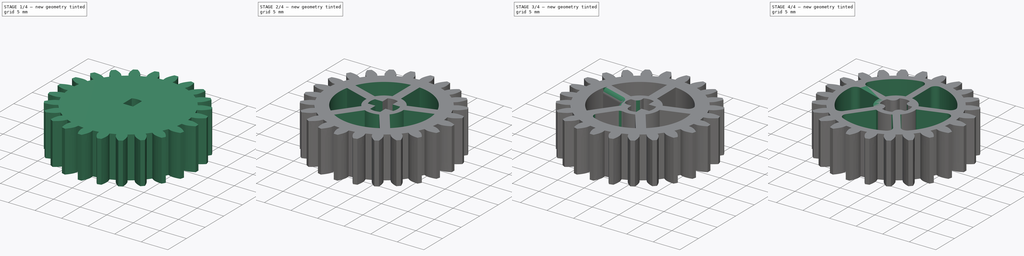
[diagram: build sequence overview — one tinted view per stage of 4, left to right]
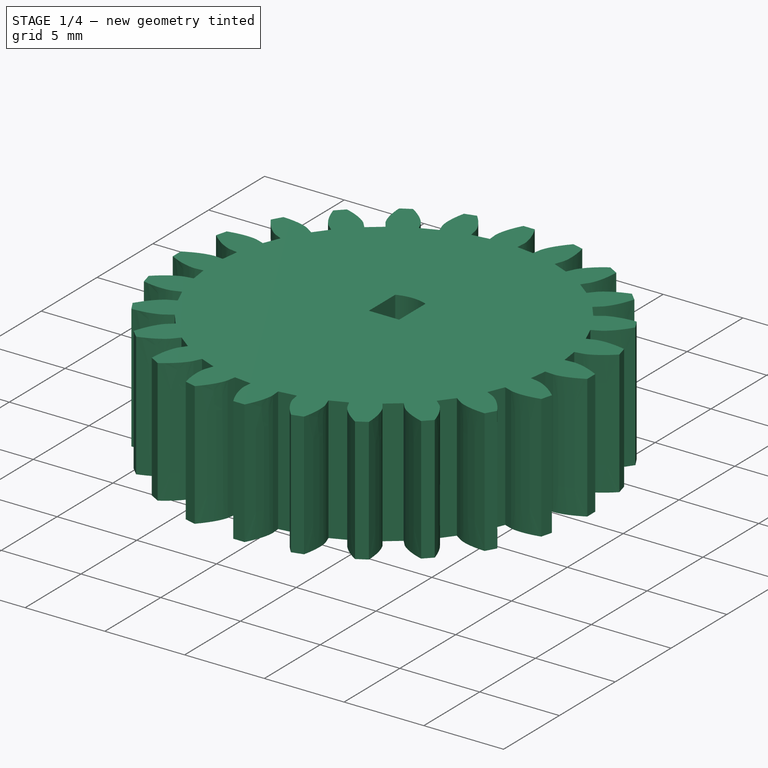
[diagram: stage 1 of 4 — iso view after this stage's code; geometry added in this stage tinted green]
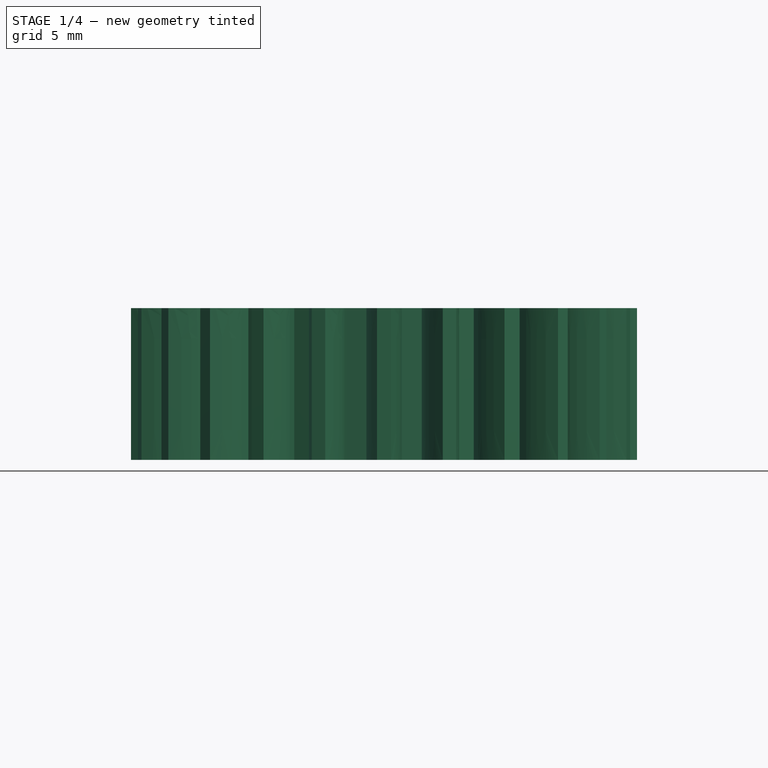
[diagram: stage 1 of 4 — front view after this stage's code; geometry added in this stage tinted green]
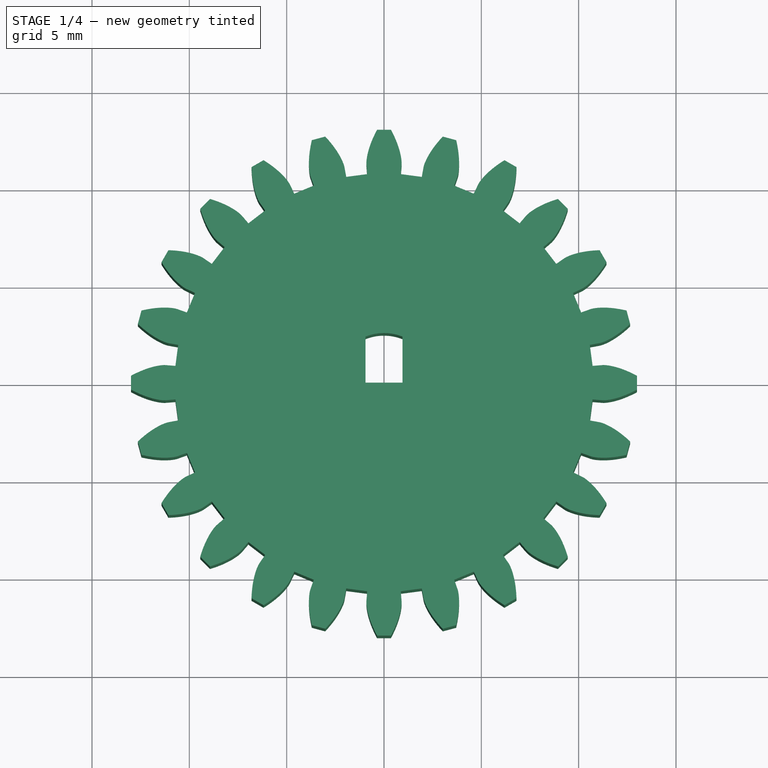
[diagram: stage 1 of 4 — top view after this stage's code; geometry added in this stage tinted green]
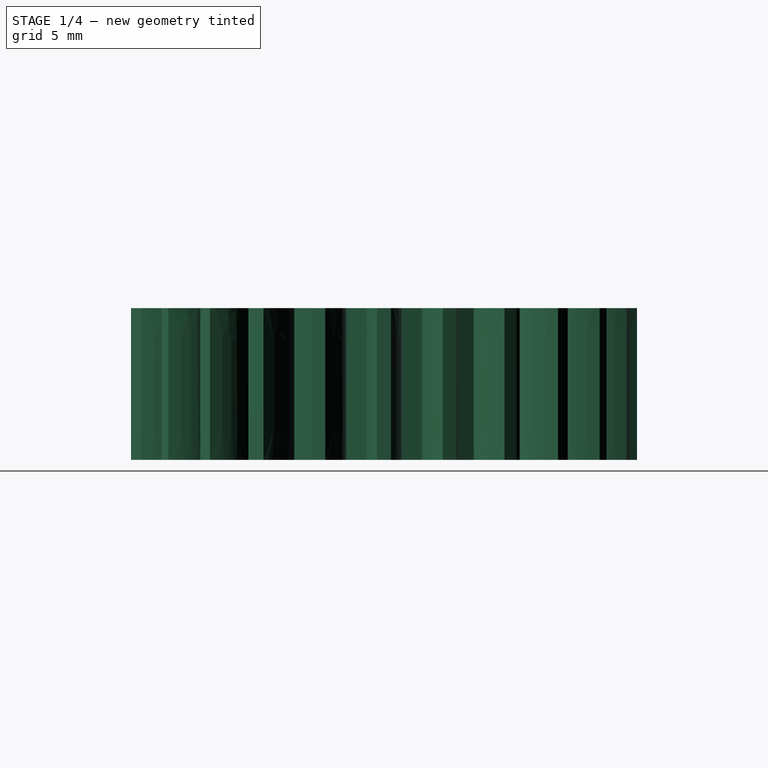
[diagram: stage 1 of 4 — right view after this stage's code; geometry added in this stage tinted green]
FCSTD DOCUMENT  (FreeCAD 0.17R13541 (Git))
Label: Gear4e
License: All rights reserved
LicenseURL: http://en.wikipedia.org/wiki/All_rights_reserved
objects: PartDesign::Fillet×6, Sketcher::SketchObject×2, PartDesign::Pocket×2, PartDesign::PolarPattern×2, Part::FeaturePython×1, PartDesign::FeatureBase×1, PartDesign::Body×1
note: 17 computed .brp shape members not serialized (recipe doc carries the construction recipe); baked Part::Feature solids carry a one-line shape summary decoded from their .brp

FEATURE [Part::FeaturePython] InvoluteGear  # WARN: FeaturePython — macro-defined, semantics opaque (R4)
  backlash = 0
  beta = 0
  clearance = 0.25
  double_helix = false
  head = 0
  height = 7.8
  module = 1
  numpoints = 6
  pressure_angle = 20
  reversed_backlash = false
  shift = 0
  simple = false
  teeth = 24
  undercut = false
FEATURE [PartDesign::FeatureBase] BaseFeature
  BaseFeature = -> InvoluteGear
FEATURE [Sketcher::SketchObject] Sketch
  MapMode = 5
  Placement = pos=(0,0,7.8) rot=(0,0,1;0rad)
  Support = -> [BaseFeature]
  sketch-geometry (6):
    g0: LineSegment StartX=0 StartY=0 StartZ=0 EndX=0.95 EndY=0 EndZ=0
    g1: LineSegment StartX=0.95 StartY=0 StartZ=0 EndX=0.95 EndY=2.36643 EndZ=0
    g2: LineSegment StartX=0 StartY=0 StartZ=0 EndX=-0.95 EndY=0 EndZ=0
    g3: LineSegment StartX=-0.95 StartY=0 StartZ=0 EndX=-0.95 EndY=2.36643 EndZ=0
    g4: ArcOfCircle CenterX=0 CenterY=0 CenterZ=0 NormalX=0 NormalY=0 NormalZ=1 AngleXU=0 Radius=2.55 StartAngle=1.18904 EndAngle=1.95255
    g5: GeomPoint X=0 Y=2.55 Z=0
  constraints (16):
    c: Coincident(g0,g-1)
    c: PointOnObject(g0,g-1)
    c: Coincident(g1,g0)
    c: Vertical(g1)
    c: Coincident(g2,g-1)
    c: PointOnObject(g2,g-1)
    c: Coincident(g3,g2)
    c: Vertical(g3)
    c: Coincident(g4,g-1)
    c: Coincident(g4,g3)
    c: Coincident(g4,g1)
    c: PointOnObject(g5,g4)
    c: PointOnObject(g5,g-2)
    c: DistanceX(g-1,g0) = 0.95
    c: DistanceX(g2,g-1) = 0.95
    c: DistanceY(g-1,g5) = 2.55
FEATURE [PartDesign::Pocket] Pocket  label="CrossPocket"
  BaseFeature = -> BaseFeature
  Length = 5
  Length2 = 100
  Profile = -> Sketch
  Type = 1
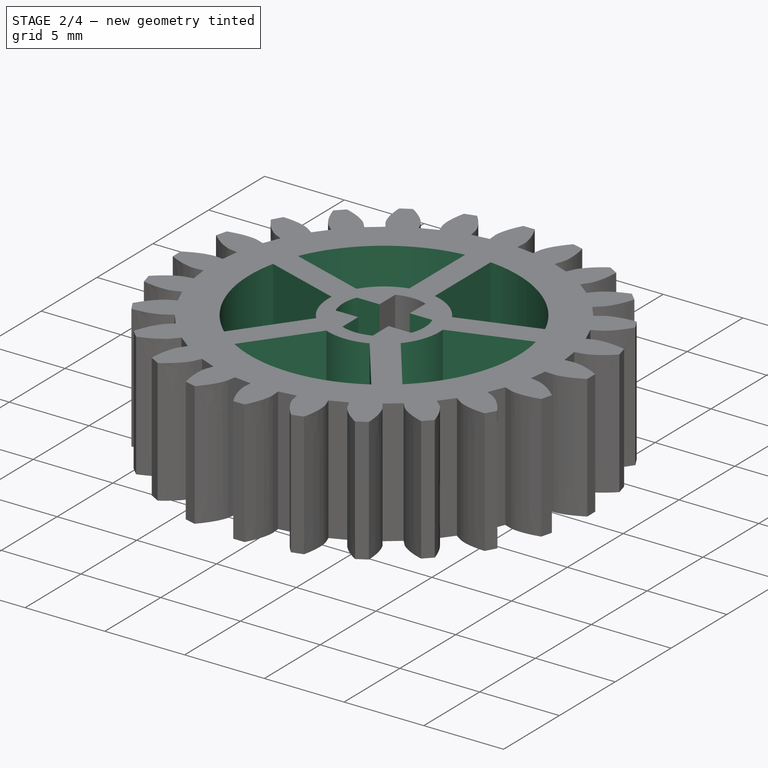
[diagram: stage 2 of 4 — iso view after this stage's code; geometry added in this stage tinted green]
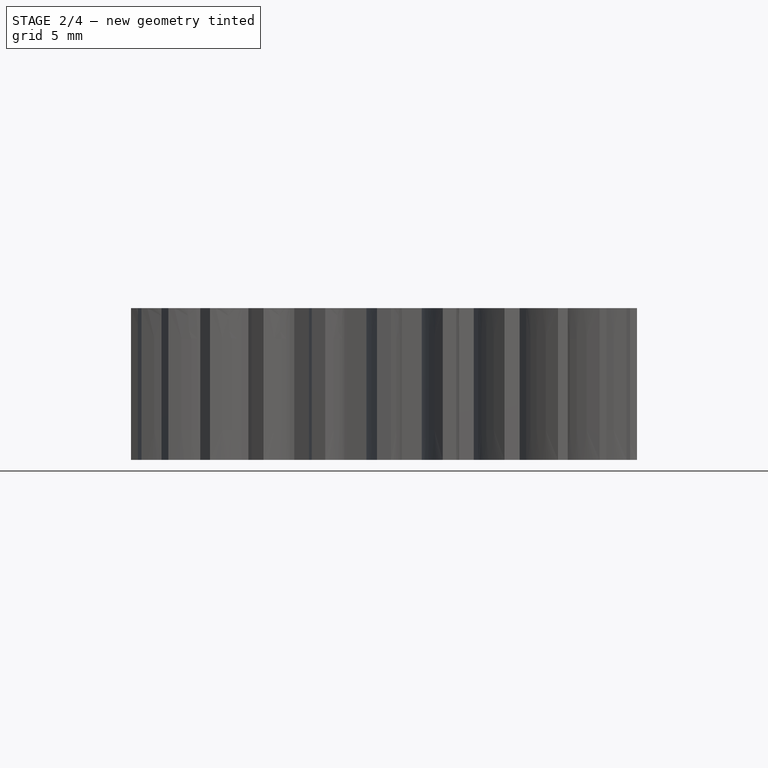
[diagram: stage 2 of 4 — front view after this stage's code; geometry added in this stage tinted green]
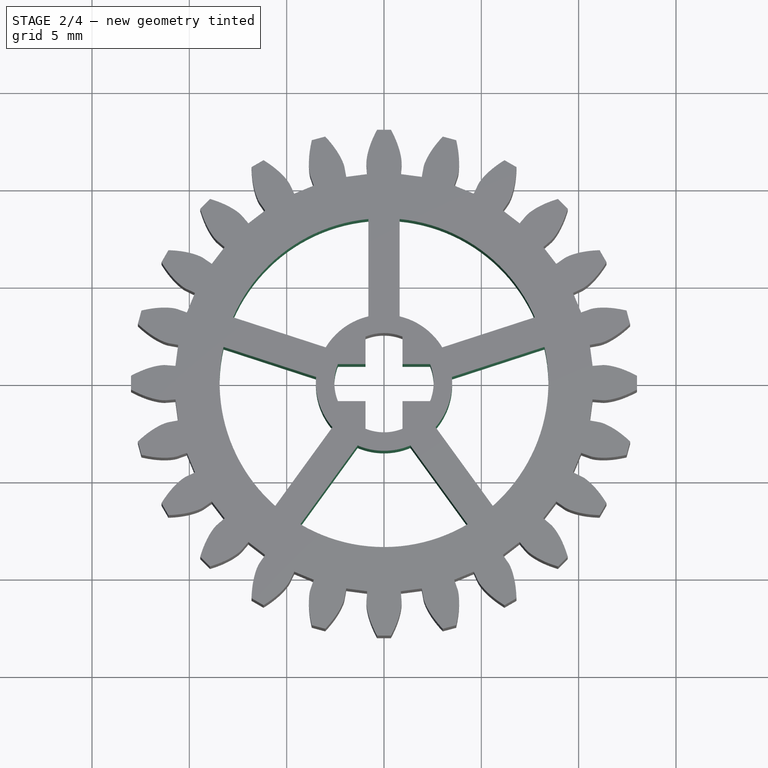
[diagram: stage 2 of 4 — top view after this stage's code; geometry added in this stage tinted green]
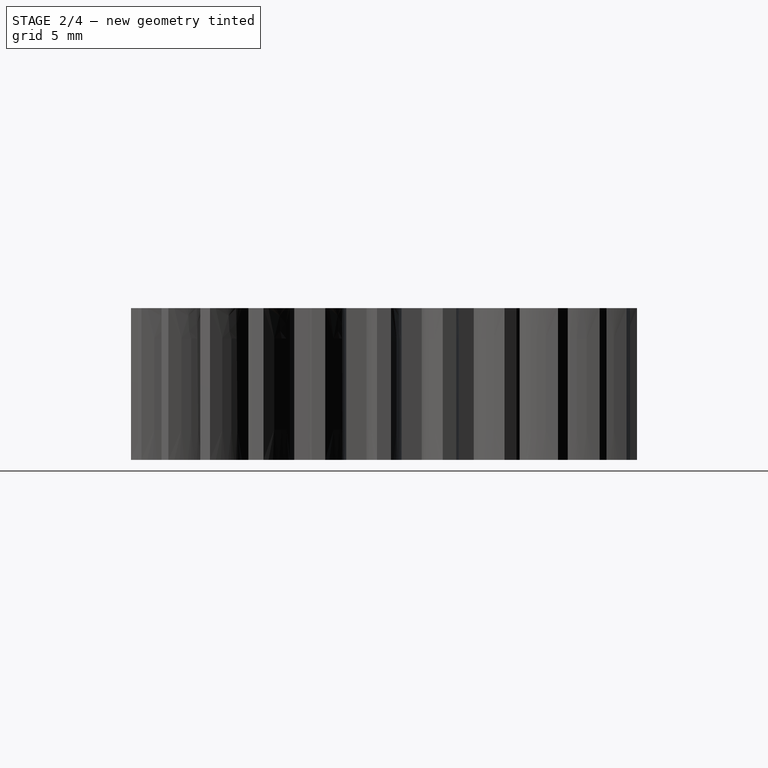
[diagram: stage 2 of 4 — right view after this stage's code; geometry added in this stage tinted green]
FEATURE [PartDesign::PolarPattern] PolarPattern
  Angle = 360
  Axis = -> Sketch [N_Axis]
  BaseFeature = -> Pocket
  Occurrences = 4
  Originals = -> [Pocket]
FEATURE [Sketcher::SketchObject] Sketch001
  MapMode = 5
  Placement = pos=(0,0,7.8) rot=(0,0,1;0rad)
  Support = -> [PolarPattern]
  sketch-geometry (7):
    g0: LineSegment StartX=0.8 StartY=8.40735 StartZ=0 EndX=0.8 EndY=3.40735 EndZ=0
    g1: LineSegment StartX=2.99336 StartY=1.81377 StartZ=0 EndX=7.74865 EndY=3.35886 EndZ=0
    g2: LineSegment [constr] StartX=0 StartY=0 StartZ=0 EndX=11.4127 EndY=3.7082 EndZ=0
    g3: GeomPoint X=13.2841 Y=-5.91591 Z=0
    g4: GeomPoint X=3.84199 Y=1.24834 Z=0
    g5: ArcOfCircle CenterX=0 CenterY=0 CenterZ=0 NormalX=0 NormalY=0 NormalZ=1 AngleXU=0 Radius=3.5 StartAngle=0.544769 EndAngle=1.34019
    g6: ArcOfCircle CenterX=0 CenterY=0 CenterZ=0 NormalX=0 NormalY=0 NormalZ=1 AngleXU=0 Radius=8.44532 StartAngle=0.409029 EndAngle=1.47593
  constraints (16):
    c: Coincident(g2,g-1)
    c: Parallel(g2,g1)
    c: PointOnObject(g4,g2)
    c: Coincident(g5,g-1)
    c: Coincident(g5,g0)
    c: Coincident(g5,g1)
    c: Radius(g5) = 3.5
    c: Angle(g2,g-2) = 1.25664
    c: Distance(g2) = 12
    c: Distance(g0) = 5
    c: Distance(g1) = 5
    c: Distance(g1,g2) = 0.8
    c: DistanceX(g-2,g0) = 0.8
    c: Coincident(g6,g-1)
    c: Coincident(g6,g0)
    c: Coincident(g6,g1)
FEATURE [PartDesign::Pocket] Pocket001  label="ArmsPocket"
  BaseFeature = -> PolarPattern
  Length = 5
  Length2 = 100
  Profile = -> Sketch001
  Type = 1
FEATURE [PartDesign::PolarPattern] PolarPattern001
  Angle = 360
  Axis = -> Sketch001 [N_Axis]
  BaseFeature = -> Pocket001
  Occurrences = 5
  Originals = -> [Pocket001]
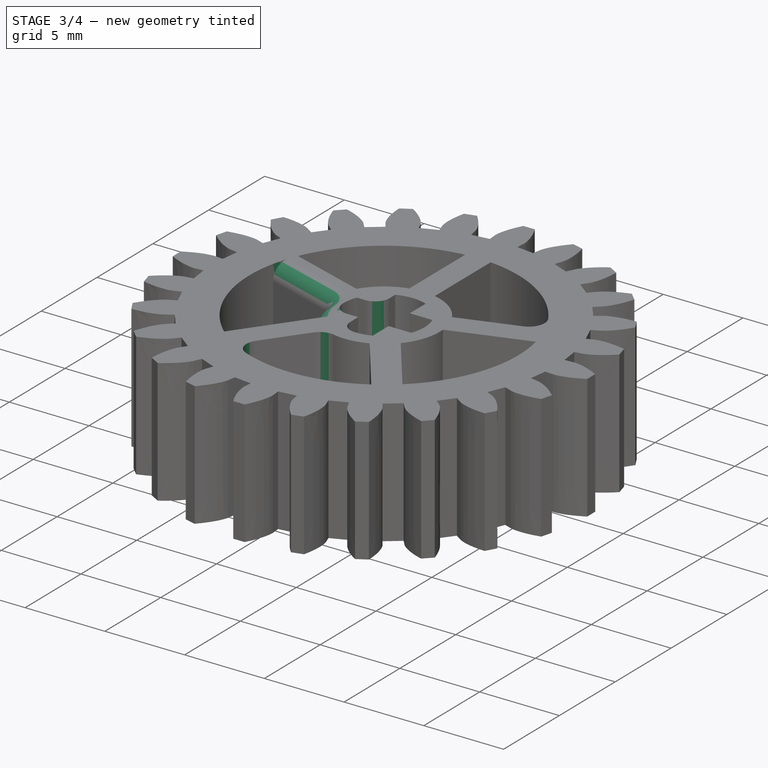
[diagram: stage 3 of 4 — iso view after this stage's code; geometry added in this stage tinted green]
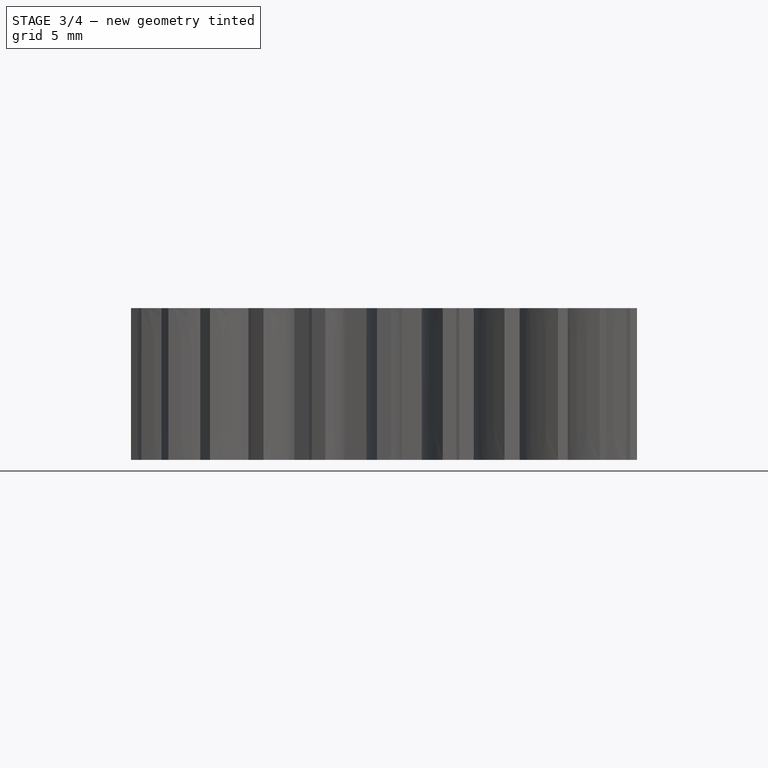
[diagram: stage 3 of 4 — front view after this stage's code; geometry added in this stage tinted green]
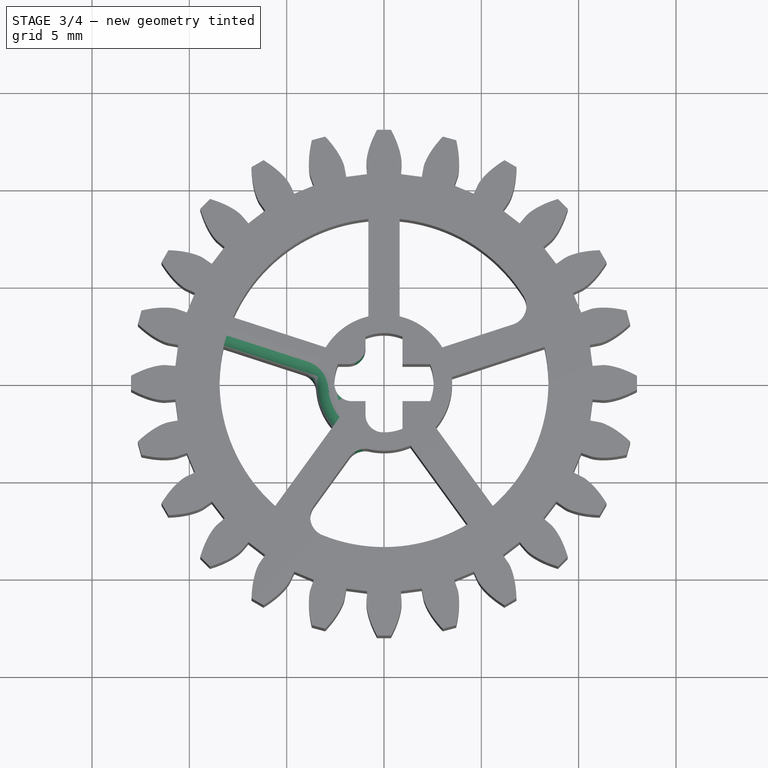
[diagram: stage 3 of 4 — top view after this stage's code; geometry added in this stage tinted green]
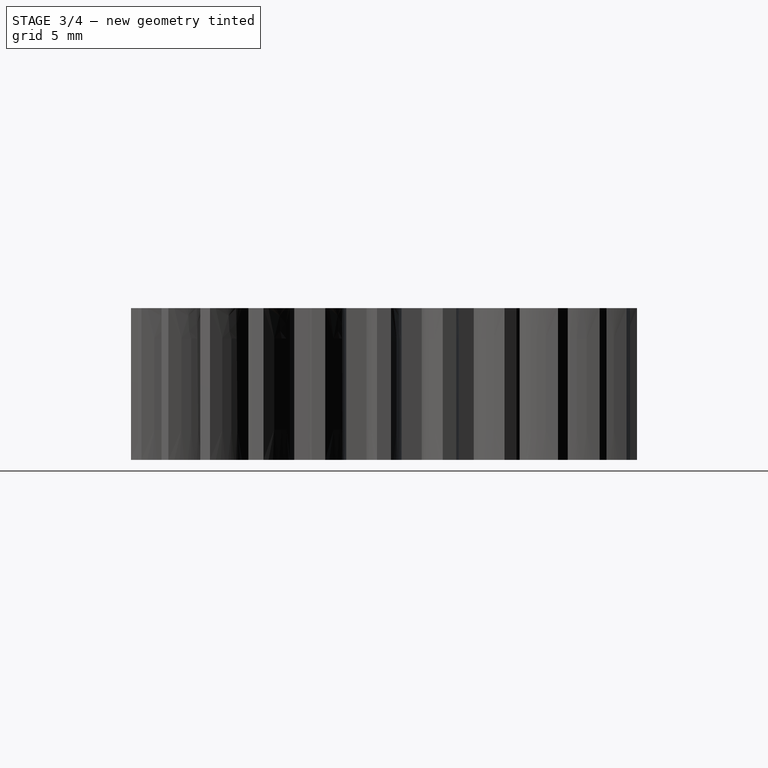
[diagram: stage 3 of 4 — right view after this stage's code; geometry added in this stage tinted green]
FEATURE [PartDesign::Fillet] Fillet
  Base = -> PolarPattern001 [Edge510,Edge506,Edge516,Edge511]
  BaseFeature = -> PolarPattern001
  Radius = 0.9
FEATURE [PartDesign::Fillet] Fillet001
  Base = -> Fillet [Edge527,Edge529]
  BaseFeature = -> Fillet
  Radius = 1
FEATURE [PartDesign::Fillet] Fillet002
  Base = -> Fillet001 [Edge537,Edge533]
  BaseFeature = -> Fillet001
  Radius = 1
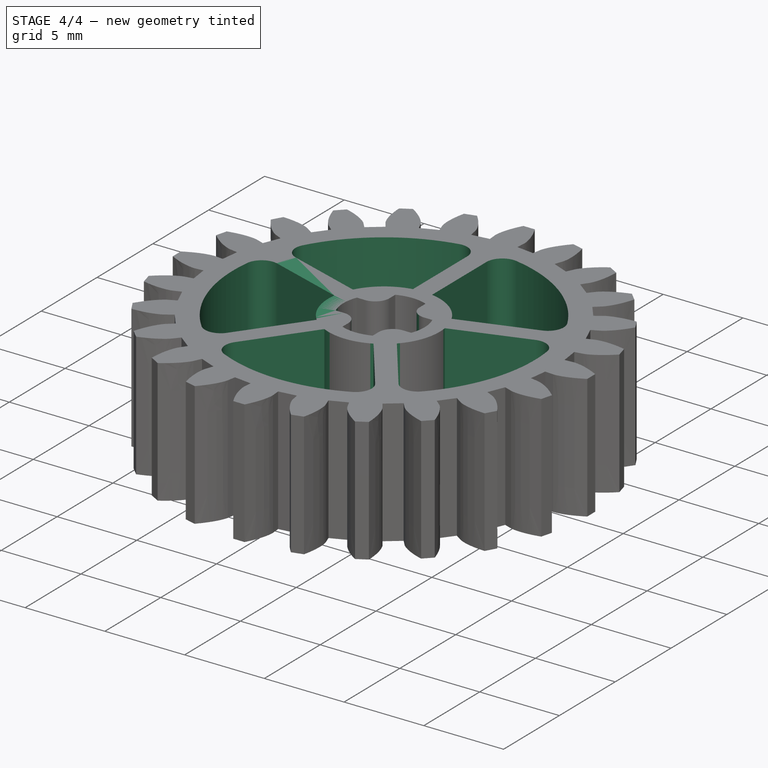
[diagram: stage 4 of 4 — iso view after this stage's code; geometry added in this stage tinted green]
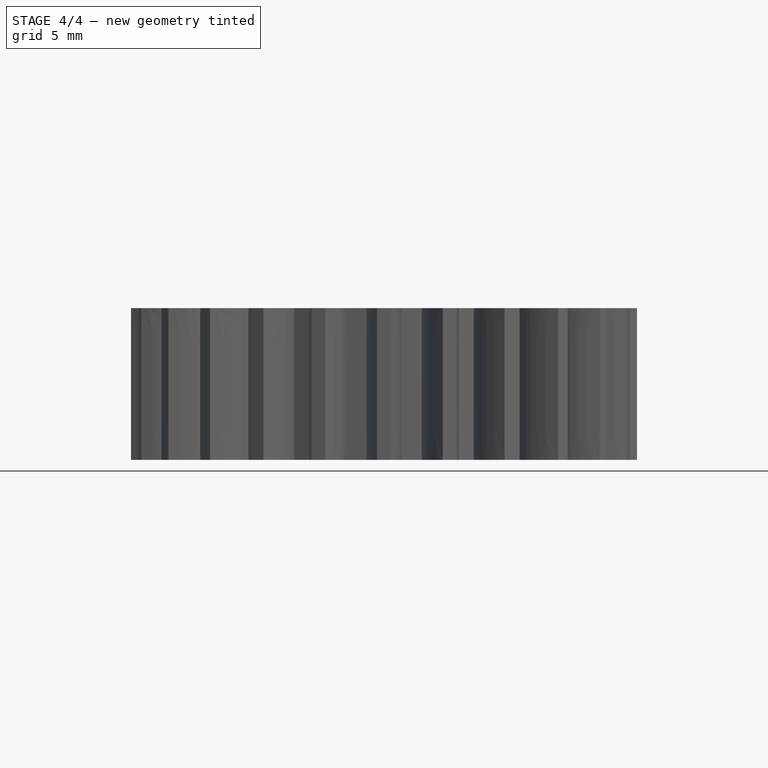
[diagram: stage 4 of 4 — front view after this stage's code; geometry added in this stage tinted green]
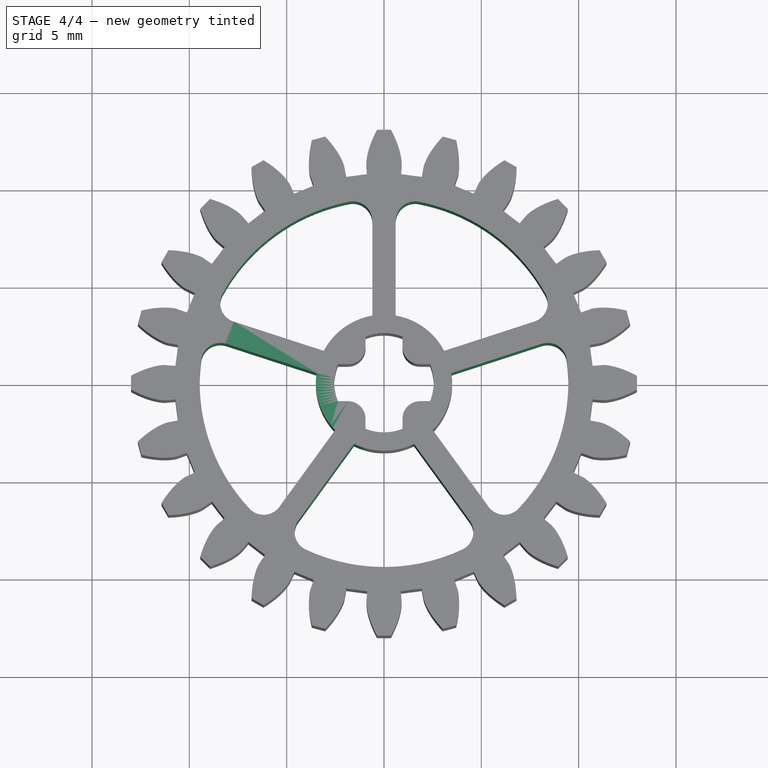
[diagram: stage 4 of 4 — top view after this stage's code; geometry added in this stage tinted green]
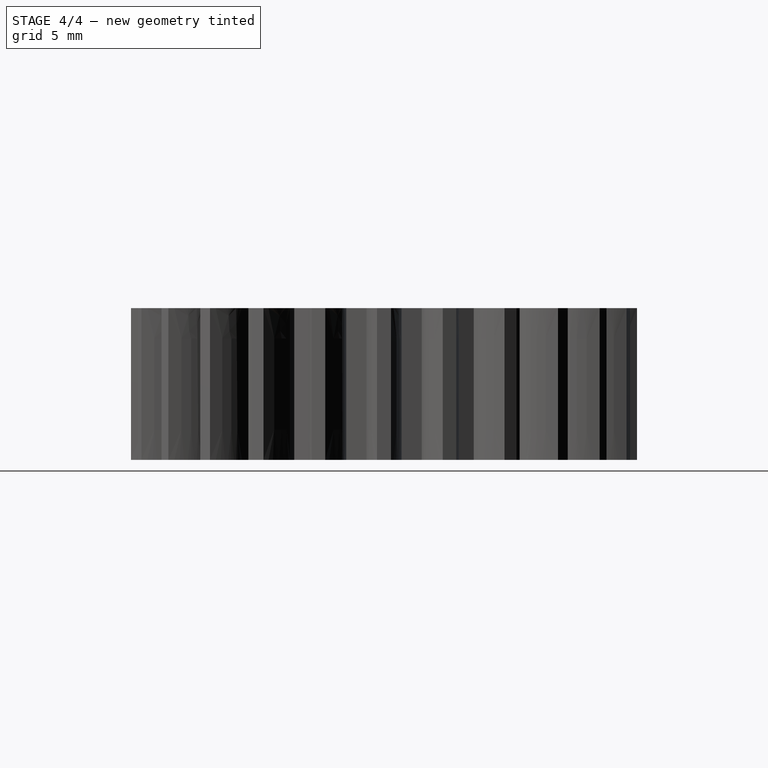
[diagram: stage 4 of 4 — right view after this stage's code; geometry added in this stage tinted green]
FEATURE [PartDesign::Fillet] Fillet003
  Base = -> Fillet002 [Edge547,Edge549]
  BaseFeature = -> Fillet002
  Radius = 1
FEATURE [PartDesign::Fillet] Fillet004
  Base = -> Fillet003 [Edge553,Edge555]
  BaseFeature = -> Fillet003
  Radius = 1
FEATURE [PartDesign::Fillet] Fillet005
  Base = -> Fillet004 [Edge559,Edge561]
  BaseFeature = -> Fillet004
  Radius = 1
FEATURE [PartDesign::Body] Body
  BaseFeature = -> InvoluteGear
  Group = -> [BaseFeature,Sketch,Pocket,PolarPattern,Sketch001,Pocket001,PolarPattern001,Fillet,Fillet001,Fillet002,Fillet003,Fillet004,Fillet005]
  Origin = -> Origin
  Tip = -> Fillet005
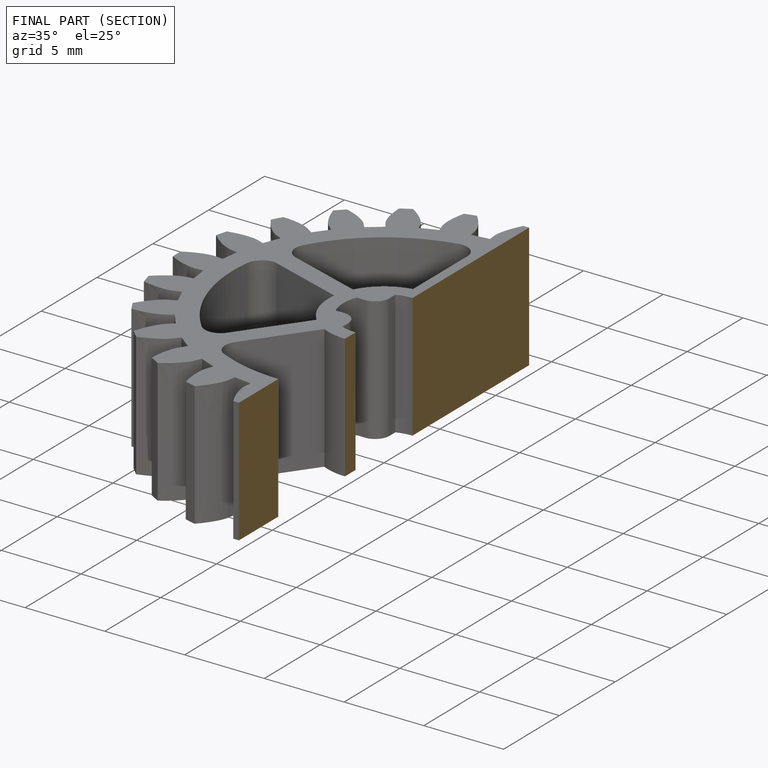
[diagram: finished part — half-section view (interior)]
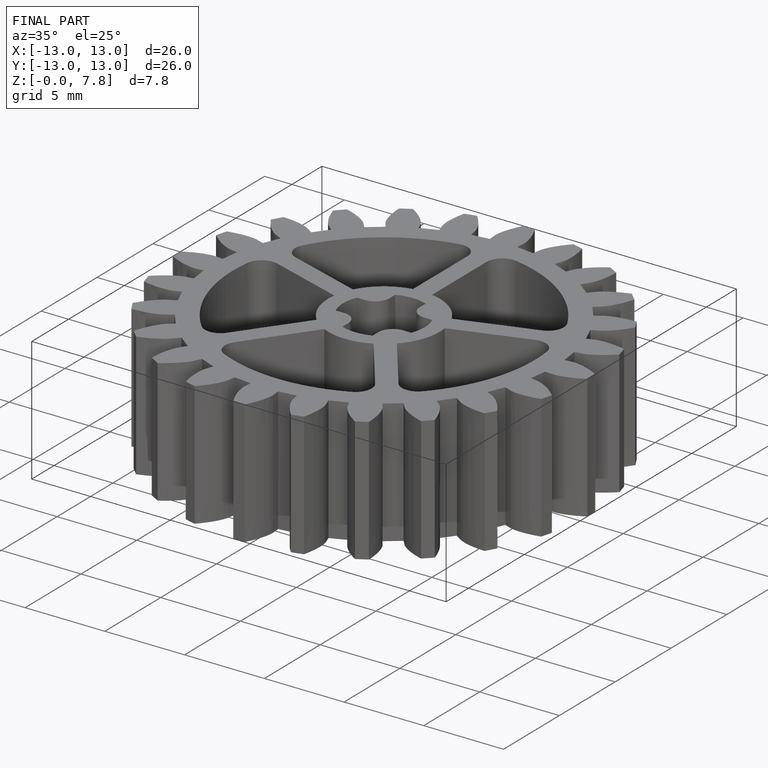
[diagram: finished part — iso view with bounding-box wireframe]
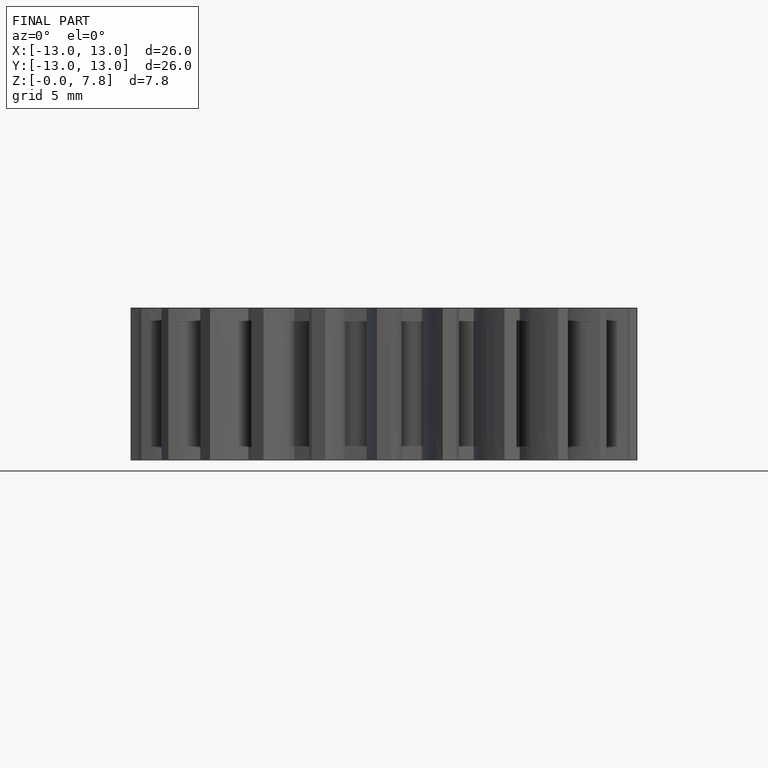
[diagram: finished part — front view with bounding-box wireframe]
